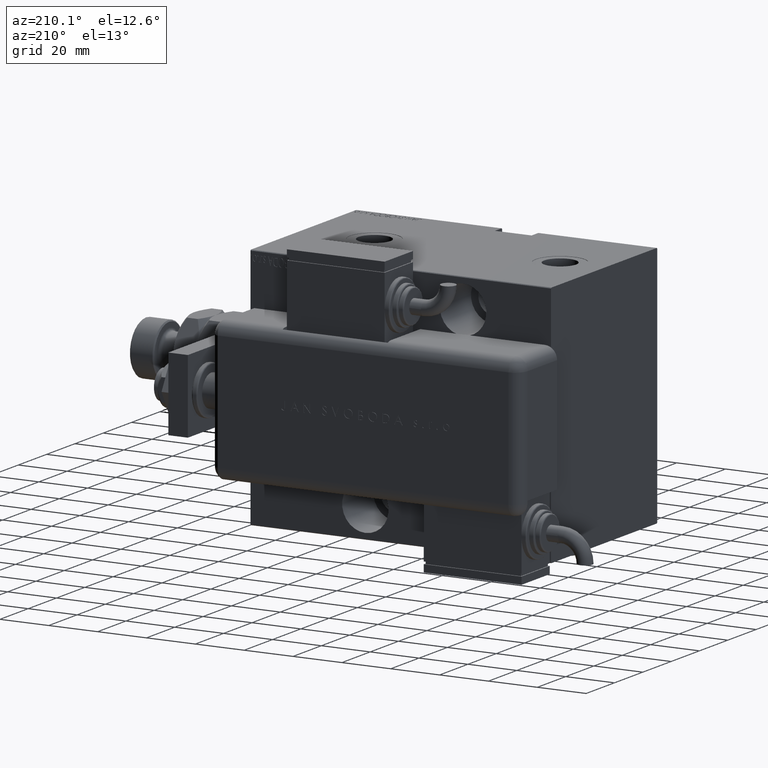
[diagram: clean part render]
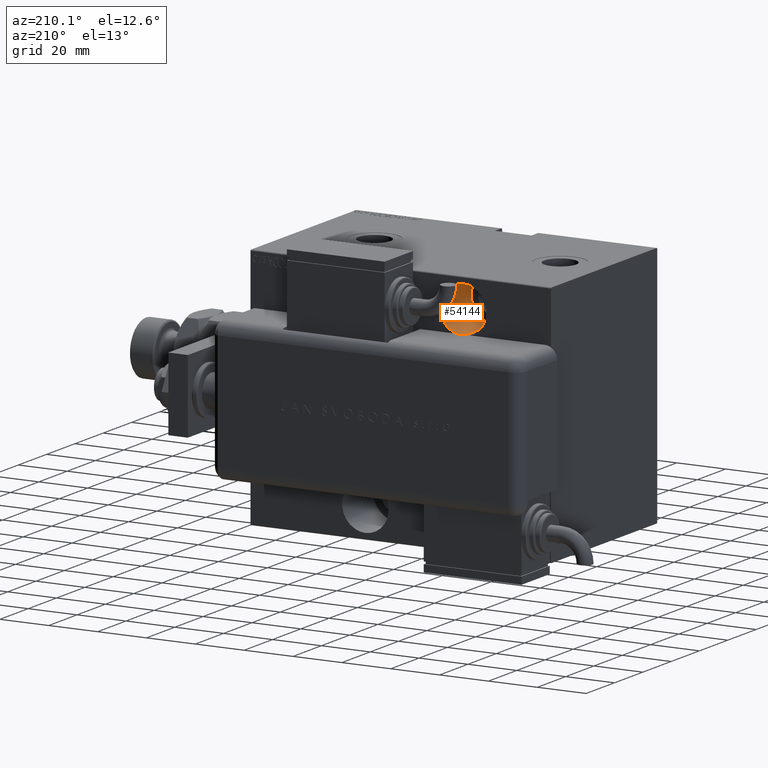
[diagram: same view with one face highlighted and labeled with its STEP entity id]
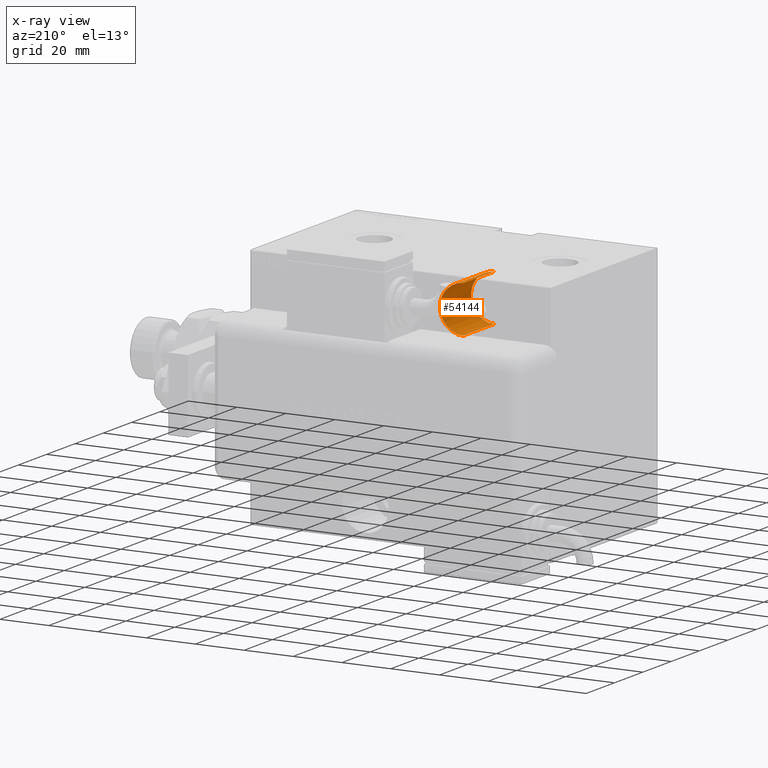
[diagram: x-ray of the same camera — body ghosted, the highlighted face saturated]
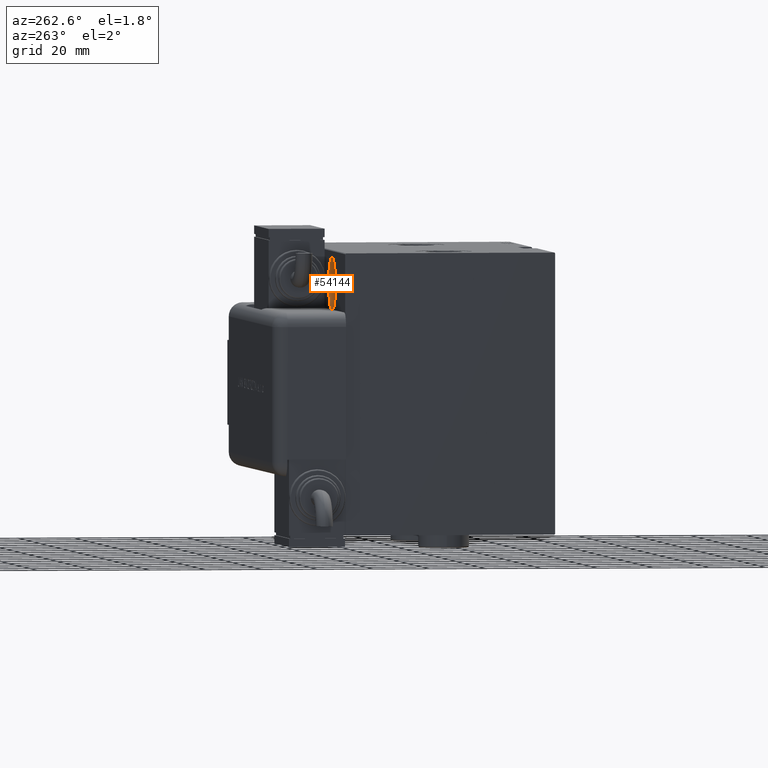
[diagram: same view with one face highlighted and labeled with its STEP entity id]
A machine part, auxiliary view. The second image highlights one B-rep face of the part: STEP entity #54144.
The next image is the same camera in x-ray: the body ghosted, the highlighted face saturated — about 0% of this face is hidden behind the body in this view.
A second angle (auxiliary view) of the same face is appended — the face is thin or edge-on in the first view.
In plain terms, the highlighted cylindrical surface (edge-blend (fillet) strip) has radius 9.5 mm, axis along (0, 1, -0).
Its self-contained STEP definition (entity closure, byte-faithful):
#1153 = AXIS2_PLACEMENT_3D ( 'NONE', #16878, #54356, #35938 ) ;
#3182 = VERTEX_POINT ( 'NONE', #59984 ) ;
#7207 = CARTESIAN_POINT ( 'NONE',  ( 87.00000000000001421, -15.50000000000000000, 47.49999999999998579 ) ) ;
#11762 = VERTEX_POINT ( 'NONE', #38380 ) ;
#14298 = LINE ( 'NONE', #47732, #21213 ) ;
#16878 = CARTESIAN_POINT ( 'NONE',  ( 87.00000000000001421, -15.50000000000000000, 37.99999999999999289 ) ) ;
#17210 = CIRCLE ( 'NONE', #25192, 9.499999999999994671 ) ;
#17281 = ORIENTED_EDGE ( 'NONE', *, *, #41757, .T. ) ;
#17535 = DIRECTION ( 'NONE',  ( 0.000000000000000000, 0.000000000000000000, -1.000000000000000000 ) ) ;
#19298 = DIRECTION ( 'NONE',  ( -0.000000000000000000, -1.000000000000000000, -0.000000000000000000 ) ) ;
#19408 = DIRECTION ( 'NONE',  ( 0.000000000000000000, 0.000000000000000000, -1.000000000000000000 ) ) ;
#21213 = VECTOR ( 'NONE', #19298, 1000.000000000000000 ) ;
#22796 = CIRCLE ( 'NONE', #35785, 9.499999999999994671 ) ;
#23843 = VERTEX_POINT ( 'NONE', #7207 ) ;
#24089 = VERTEX_POINT ( 'NONE', #43731 ) ;
#25192 = AXIS2_PLACEMENT_3D ( 'NONE', #43459, #34394, #19408 ) ;
#25942 = FACE_OUTER_BOUND ( 'NONE', #44168, .T. ) ;
#26609 = CARTESIAN_POINT ( 'NONE',  ( 87.00000000000001421, -37.50000000000000000, 37.99999999999999289 ) ) ;
#29637 = ORIENTED_EDGE ( 'NONE', *, *, #58538, .T. ) ;
#34394 = DIRECTION ( 'NONE',  ( 0.000000000000000000, -1.000000000000000000, 0.000000000000000000 ) ) ;
#35315 = CYLINDRICAL_SURFACE ( 'NONE', #1153, 9.499999999999994671 ) ;
#35785 = AXIS2_PLACEMENT_3D ( 'NONE', #26609, #60948, #17535 ) ;
#35938 = DIRECTION ( 'NONE',  ( 0.000000000000000000, 0.000000000000000000, -1.000000000000000000 ) ) ;
#38380 = CARTESIAN_POINT ( 'NONE',  ( 87.00000000000001421, -37.50000000000000000, 28.49999999999999645 ) ) ;
#39913 = LINE ( 'NONE', #44276, #59156 ) ;
#41757 = EDGE_CURVE ( 'NONE', #24089, #11762, #22796, .T. ) ;
#43459 = CARTESIAN_POINT ( 'NONE',  ( 87.00000000000001421, -15.50000000000000000, 37.99999999999999289 ) ) ;
#43731 = CARTESIAN_POINT ( 'NONE',  ( 87.00000000000001421, -37.50000000000000000, 47.49999999999998579 ) ) ;
#44168 = EDGE_LOOP ( 'NONE', ( #56530, #29637, #17281, #45936 ) ) ;
#44276 = CARTESIAN_POINT ( 'NONE',  ( 87.00000000000001421, -15.50000000000000000, 47.49999999999998579 ) ) ;
#44589 = DIRECTION ( 'NONE',  ( -0.000000000000000000, -1.000000000000000000, -0.000000000000000000 ) ) ;
#45936 = ORIENTED_EDGE ( 'NONE', *, *, #57537, .F. ) ;
#47732 = CARTESIAN_POINT ( 'NONE',  ( 87.00000000000001421, -15.50000000000000000, 28.49999999999999645 ) ) ;
#54144 = ADVANCED_FACE ( 'NONE', ( #25942 ), #35315, .F. ) ;
#54356 = DIRECTION ( 'NONE',  ( -0.000000000000000000, -1.000000000000000000, -0.000000000000000000 ) ) ;
#54906 = EDGE_CURVE ( 'NONE', #23843, #3182, #17210, .T. ) ;
#56530 = ORIENTED_EDGE ( 'NONE', *, *, #54906, .F. ) ;
#57537 = EDGE_CURVE ( 'NONE', #3182, #11762, #14298, .T. ) ;
#58538 = EDGE_CURVE ( 'NONE', #23843, #24089, #39913, .T. ) ;
#59156 = VECTOR ( 'NONE', #44589, 1000.000000000000000 ) ;
#59984 = CARTESIAN_POINT ( 'NONE',  ( 87.00000000000001421, -15.50000000000000000, 28.49999999999999645 ) ) ;
#60948 = DIRECTION ( 'NONE',  ( 0.000000000000000000, -1.000000000000000000, 0.000000000000000000 ) ) ;